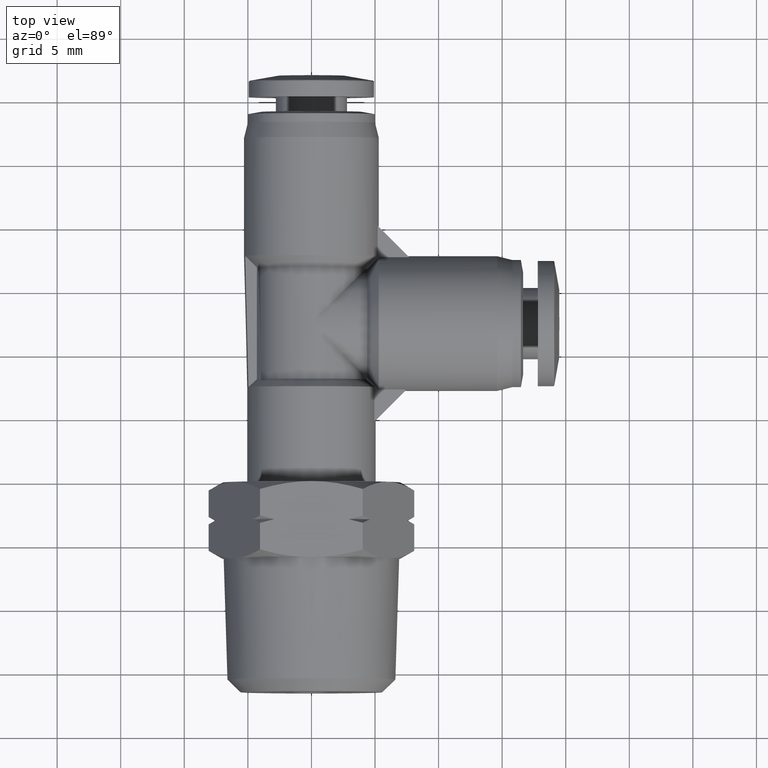
[diagram: clean part render]
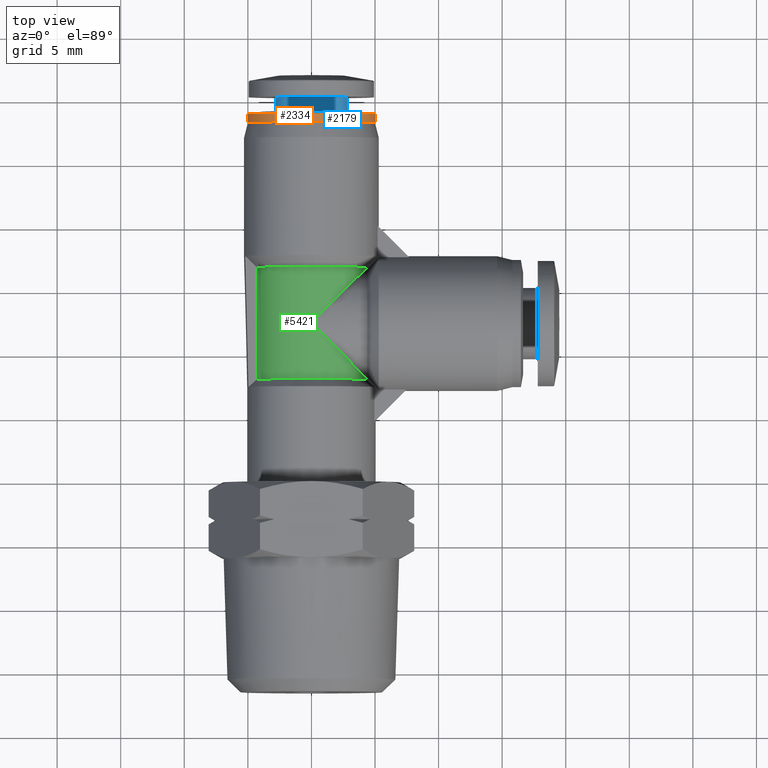
[diagram: same view with three faces highlighted in distinct colors, each labeled with its STEP entity id]
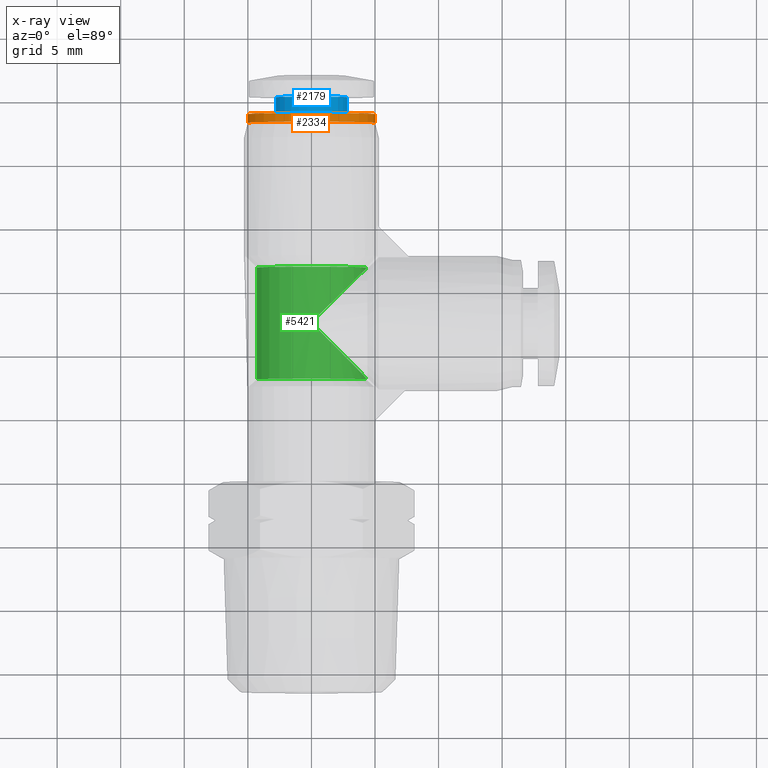
[diagram: x-ray of the same camera — body ghosted, the three highlighted faces saturated]
A machine part, top view with three faces highlighted in distinct colors.
The next image is the same camera in x-ray (body ghosted, the three faces saturated) — at least one of them is partly hidden behind the body in this view.
Their STEP definitions:

[orange] entity #2334 — the highlighted cylindrical surface (partial cylindrical patch) has radius 5 mm, axis along (0, 1, 0).
#43 = CARTESIAN_POINT ( 'NONE',  ( -9.279330078590980900E-016, 1.114173228348754200, 0.0000000000000000000 ) ) ;
#115 = EDGE_CURVE ( 'NONE', #2519, #233, #883, .T. ) ;
#198 = LINE ( 'NONE', #4030, #4807 ) ;
#233 = VERTEX_POINT ( 'NONE', #1661 ) ;
#443 = VECTOR ( 'NONE', #5229, 39.37007874015748100 ) ;
#501 = DIRECTION ( 'NONE',  ( -1.000000000000000000, 6.245004513309222900E-015, 0.0000000000000000000 ) ) ;
#735 = CIRCLE ( 'NONE', #2639, 0.1968503937073212400 ) ;
#867 = ORIENTED_EDGE ( 'NONE', *, *, #4433, .F. ) ;
#883 = CIRCLE ( 'NONE', #4400, 0.1968503937007510000 ) ;
#1095 = CARTESIAN_POINT ( 'NONE',  ( -0.1968503937073221600, 1.114173228348755500, 0.0000000000000000000 ) ) ;
#1237 = DIRECTION ( 'NONE',  ( 6.370135999999999700E-015, 1.000000000000000000, 0.0000000000000000000 ) ) ;
#1481 = LINE ( 'NONE', #1539, #443 ) ;
#1539 = CARTESIAN_POINT ( 'NONE',  ( -0.1968503937007518600, 1.127434508253742300, 0.0000000000000000000 ) ) ;
#1661 = CARTESIAN_POINT ( 'NONE',  ( -0.1968503935156613900, 1.140695788161056000, 2.410722043298506800E-017 ) ) ;
#1732 = EDGE_CURVE ( 'NONE', #2157, #2519, #198, .T. ) ;
#2157 = VERTEX_POINT ( 'NONE', #4759 ) ;
#2316 = CARTESIAN_POINT ( 'NONE',  ( 0.1968503935156601400, 1.140695788161053500, 0.0000000000000000000 ) ) ;
#2334 = ADVANCED_FACE ( 'NONE', ( #5365 ), #4856, .T. ) ;
#2356 = ORIENTED_EDGE ( 'NONE', *, *, #115, .T. ) ;
#2482 = EDGE_CURVE ( 'NONE', #2157, #4460, #735, .T. ) ;
#2519 = VERTEX_POINT ( 'NONE', #2316 ) ;
#2639 = AXIS2_PLACEMENT_3D ( 'NONE', #43, #3274, #501 ) ;
#2959 = CARTESIAN_POINT ( 'NONE',  ( -7.589809300705172500E-016, 1.140695788161054700, 0.0000000000000000000 ) ) ;
#2979 = DIRECTION ( 'NONE',  ( -1.000000000000000000, 6.245004513517661200E-015, 0.0000000000000000000 ) ) ;
#3000 = DIRECTION ( 'NONE',  ( -6.370135999999999700E-015, -1.000000000000000000, -0.0000000000000000000 ) ) ;
#3258 = ORIENTED_EDGE ( 'NONE', *, *, #2482, .F. ) ;
#3274 = DIRECTION ( 'NONE',  ( -6.370135999999999700E-015, -1.000000000000000000, 0.0000000000000000000 ) ) ;
#3738 = EDGE_LOOP ( 'NONE', ( #3258, #5089, #2356, #867 ) ) ;
#4030 = CARTESIAN_POINT ( 'NONE',  ( 0.1968503937007501600, 1.127434508253739800, 2.410722045565210200E-017 ) ) ;
#4400 = AXIS2_PLACEMENT_3D ( 'NONE', #2959, #3000, #2979 ) ;
#4433 = EDGE_CURVE ( 'NONE', #4460, #233, #1481, .T. ) ;
#4460 = VERTEX_POINT ( 'NONE', #1095 ) ;
#4759 = CARTESIAN_POINT ( 'NONE',  ( 0.1968503937073203300, 1.114173228348753100, 2.410722045645671500E-017 ) ) ;
#4807 = VECTOR ( 'NONE', #5350, 39.37007874015748100 ) ;
#4856 = CYLINDRICAL_SURFACE ( 'NONE', #4914, 0.1968503937007510000 ) ;
#4914 = AXIS2_PLACEMENT_3D ( 'NONE', #4957, #1237, #4976 ) ;
#4957 = CARTESIAN_POINT ( 'NONE',  ( -8.434570866141732300E-016, 1.127434508253740900, 0.0000000000000000000 ) ) ;
#4976 = DIRECTION ( 'NONE',  ( -1.000000000000000000, 6.245004513517661200E-015, 0.0000000000000000000 ) ) ;
#5089 = ORIENTED_EDGE ( 'NONE', *, *, #1732, .T. ) ;
#5229 = DIRECTION ( 'NONE',  ( 6.370135999999999700E-015, 1.000000000000000000, 0.0000000000000000000 ) ) ;
#5350 = DIRECTION ( 'NONE',  ( 6.370135999999999700E-015, 1.000000000000000000, 0.0000000000000000000 ) ) ;
#5365 = FACE_OUTER_BOUND ( 'NONE', #3738, .T. ) ;

[blue] entity #2179 — the highlighted cylindrical surface (edge-blend (fillet) strip) has radius 2.8 mm, axis along (0, 1, 0).
#218 = EDGE_CURVE ( 'NONE', #4362, #4116, #680, .T. ) ;
#563 = AXIS2_PLACEMENT_3D ( 'NONE', #1843, #1883, #1859 ) ;
#566 = ORIENTED_EDGE ( 'NONE', *, *, #5210, .T. ) ;
#680 = CIRCLE ( 'NONE', #563, 0.1102362204724030400 ) ;
#1103 = EDGE_CURVE ( 'NONE', #4362, #4337, #3220, .T. ) ;
#1366 = DIRECTION ( 'NONE',  ( 6.370135999999999700E-015, 1.000000000000000000, 0.0000000000000000000 ) ) ;
#1724 = CYLINDRICAL_SURFACE ( 'NONE', #3105, 0.1102362204724030400 ) ;
#1843 = CARTESIAN_POINT ( 'NONE',  ( -7.147593779527558900E-016, 1.147637795275561200, 0.0000000000000000000 ) ) ;
#1859 = DIRECTION ( 'NONE',  ( -1.000000000000000000, 6.195440985633584100E-015, 0.0000000000000000000 ) ) ;
#1883 = DIRECTION ( 'NONE',  ( 6.370135999999999700E-015, 1.000000000000000000, 0.0000000000000000000 ) ) ;
#1998 = ORIENTED_EDGE ( 'NONE', *, *, #4199, .F. ) ;
#2082 = LINE ( 'NONE', #4484, #5686 ) ;
#2144 = DIRECTION ( 'NONE',  ( 6.370135999999999700E-015, 1.000000000000000000, 0.0000000000000000000 ) ) ;
#2179 = ADVANCED_FACE ( 'NONE', ( #2481 ), #1724, .T. ) ;
#2330 = VECTOR ( 'NONE', #1366, 39.37007874015748100 ) ;
#2335 = CARTESIAN_POINT ( 'NONE',  ( -4.263477086614177600E-016, 1.192913385826742400, 0.0000000000000000000 ) ) ;
#2457 = CARTESIAN_POINT ( 'NONE',  ( -0.1102362204724037600, 1.147637795275562100, 0.0000000000000000000 ) ) ;
#2481 = FACE_OUTER_BOUND ( 'NONE', #2958, .T. ) ;
#2810 = VERTEX_POINT ( 'NONE', #4521 ) ;
#2818 = DIRECTION ( 'NONE',  ( -1.000000000000000000, 6.195440985633584100E-015, 0.0000000000000000000 ) ) ;
#2946 = DIRECTION ( 'NONE',  ( 6.370135999999999700E-015, 1.000000000000000000, 0.0000000000000000000 ) ) ;
#2958 = EDGE_LOOP ( 'NONE', ( #3886, #566, #1998, #4508 ) ) ;
#3105 = AXIS2_PLACEMENT_3D ( 'NONE', #4325, #2946, #3443 ) ;
#3220 = LINE ( 'NONE', #3473, #2330 ) ;
#3443 = DIRECTION ( 'NONE',  ( -1.000000000000000000, 6.195440985633584100E-015, 0.0000000000000000000 ) ) ;
#3473 = CARTESIAN_POINT ( 'NONE',  ( -0.1102362204724036100, 1.170275590551152600, 0.0000000000000000000 ) ) ;
#3886 = ORIENTED_EDGE ( 'NONE', *, *, #218, .T. ) ;
#4116 = VERTEX_POINT ( 'NONE', #4951 ) ;
#4199 = EDGE_CURVE ( 'NONE', #4337, #2810, #5230, .T. ) ;
#4325 = CARTESIAN_POINT ( 'NONE',  ( -5.705535433070866700E-016, 1.170275590551151900, 0.0000000000000000000 ) ) ;
#4337 = VERTEX_POINT ( 'NONE', #5182 ) ;
#4362 = VERTEX_POINT ( 'NONE', #2457 ) ;
#4484 = CARTESIAN_POINT ( 'NONE',  ( 0.1102362204724024700, 1.170275590551151000, 1.350004345516303100E-017 ) ) ;
#4508 = ORIENTED_EDGE ( 'NONE', *, *, #1103, .F. ) ;
#4521 = CARTESIAN_POINT ( 'NONE',  ( 0.1102362204724026300, 1.192913385826741600, 1.350004345516304800E-017 ) ) ;
#4951 = CARTESIAN_POINT ( 'NONE',  ( 0.1102362204724023200, 1.147637795275560500, 1.350004345516303100E-017 ) ) ;
#5182 = CARTESIAN_POINT ( 'NONE',  ( -0.1102362204724034700, 1.192913385826743100, 0.0000000000000000000 ) ) ;
#5210 = EDGE_CURVE ( 'NONE', #4116, #2810, #2082, .T. ) ;
#5230 = CIRCLE ( 'NONE', #5687, 0.1102362204724030400 ) ;
#5500 = DIRECTION ( 'NONE',  ( 6.370135999999999700E-015, 1.000000000000000000, 0.0000000000000000000 ) ) ;
#5686 = VECTOR ( 'NONE', #2144, 39.37007874015748100 ) ;
#5687 = AXIS2_PLACEMENT_3D ( 'NONE', #2335, #5500, #2818 ) ;

[green] entity #5421 — the highlighted cylindrical surface (partial cylindrical patch) has radius 4.4 mm, axis along (0, 1, 0).
#77 = CARTESIAN_POINT ( 'NONE',  ( -4.890456692913386400E-015, 0.4921259842518958000, 0.0000000000000000000 ) ) ;
#94 = VECTOR ( 'NONE', #1755, 39.37007874015748100 ) ;
#241 = VERTEX_POINT ( 'NONE', #1635 ) ;
#330 = AXIS2_PLACEMENT_3D ( 'NONE', #3456, #669, #2572 ) ;
#529 = EDGE_CURVE ( 'NONE', #241, #2673, #4365, .T. ) ;
#579 = FACE_OUTER_BOUND ( 'NONE', #5151, .T. ) ;
#632 = DIRECTION ( 'NONE',  ( -1.000000000000000000, 6.308085367191217700E-015, 0.0000000000000000000 ) ) ;
#642 = EDGE_CURVE ( 'NONE', #4712, #2970, #882, .T. ) ;
#669 = DIRECTION ( 'NONE',  ( -6.370135999999999700E-015, -1.000000000000000000, 0.0000000000000000000 ) ) ;
#731 = CIRCLE ( 'NONE', #330, 0.1732283464669133500 ) ;
#781 = VERTEX_POINT ( 'NONE', #2368 ) ;
#832 = CARTESIAN_POINT ( 'NONE',  ( 0.08390196899499219300, 0.4082240152570027500, 0.1732283464566158600 ) ) ;
#875 = ORIENTED_EDGE ( 'NONE', *, *, #2042, .T. ) ;
#882 =( BOUNDED_CURVE ( )  B_SPLINE_CURVE ( 3, ( #3566, #3643, #3784, #3544 ),
 .UNSPECIFIED., .F., .T. ) 
 B_SPLINE_CURVE_WITH_KNOTS ( ( 4, 4 ),
 ( 4.712388980384689700, 6.053909103965502000 ),
 .UNSPECIFIED. ) 
 CURVE ( )  GEOMETRIC_REPRESENTATION_ITEM ( )  RATIONAL_B_SPLINE_CURVE ( ( 1.000000000000000000, 0.8555663012004484100, 0.8555663012004484100, 1.000000000000000000 ) ) 
 REPRESENTATION_ITEM ( '' )  );
#924 = CARTESIAN_POINT ( 'NONE',  ( 0.1686951597345603100, 0.3188976378117316900, 0.03937007874015748000 ) ) ;
#1141 = CARTESIAN_POINT ( 'NONE',  ( 0.1686951597292729300, 0.2734316764540401500, 0.03937007874015748000 ) ) ;
#1286 = CYLINDRICAL_SURFACE ( 'NONE', #4771, 0.1732283464566152500 ) ;
#1441 = DIRECTION ( 'NONE',  ( -6.370135999999999700E-015, -1.000000000000000000, -0.0000000000000000000 ) ) ;
#1482 = ORIENTED_EDGE ( 'NONE', *, *, #5243, .T. ) ;
#1573 =( BOUNDED_CURVE ( )  B_SPLINE_CURVE ( 3, ( #5368, #2665, #832, #4070 ),
 .UNSPECIFIED., .F., .F. ) 
 B_SPLINE_CURVE_WITH_KNOTS ( ( 4, 4 ),
 ( 0.2292762032140843700, 1.570796326794896600 ),
 .UNSPECIFIED. ) 
 CURVE ( )  GEOMETRIC_REPRESENTATION_ITEM ( )  RATIONAL_B_SPLINE_CURVE ( ( 1.000000000000000000, 0.8555663012004484100, 0.8555663012004484100, 1.000000000000000000 ) ) 
 REPRESENTATION_ITEM ( '' )  );
#1635 = CARTESIAN_POINT ( 'NONE',  ( -0.1686951597342755100, 0.3188976378120006400, 0.03937007874015752800 ) ) ;
#1755 = DIRECTION ( 'NONE',  ( 6.370135999999999700E-015, 1.000000000000000000, 0.0000000000000000000 ) ) ;
#1853 = CARTESIAN_POINT ( 'NONE',  ( -4.886817490793777500E-015, 0.4921259842520063200, 0.1732283464566158600 ) ) ;
#2042 = EDGE_CURVE ( 'NONE', #781, #2673, #5454, .T. ) ;
#2368 = CARTESIAN_POINT ( 'NONE',  ( 0.1686951597372141100, 0.6653543307004212700, 0.03937007874015750100 ) ) ;
#2572 = DIRECTION ( 'NONE',  ( -1.000000000000000000, 6.308085366816213800E-015, 0.0000000000000000000 ) ) ;
#2634 = ORIENTED_EDGE ( 'NONE', *, *, #5575, .T. ) ;
#2665 = CARTESIAN_POINT ( 'NONE',  ( 0.1496265304122202100, 0.3424994538397698700, 0.1210764296390096900 ) ) ;
#2673 = VERTEX_POINT ( 'NONE', #3917 ) ;
#2911 = VERTEX_POINT ( 'NONE', #924 ) ;
#2970 = VERTEX_POINT ( 'NONE', #4651 ) ;
#3171 = CARTESIAN_POINT ( 'NONE',  ( 0.1686951597292740100, 0.4921259842518947400, 0.03937007874015750800 ) ) ;
#3435 = ORIENTED_EDGE ( 'NONE', *, *, #5485, .F. ) ;
#3456 = CARTESIAN_POINT ( 'NONE',  ( -5.993947212523450900E-015, 0.3188976378069797700, 0.0000000000000000000 ) ) ;
#3530 = VERTEX_POINT ( 'NONE', #5286 ) ;
#3544 = CARTESIAN_POINT ( 'NONE',  ( 0.1686951597292756800, 0.6608211439812741200, 0.03937007874015750100 ) ) ;
#3566 = CARTESIAN_POINT ( 'NONE',  ( -4.886817490793777500E-015, 0.4921259842520063200, 0.1732283464566158600 ) ) ;
#3643 = CARTESIAN_POINT ( 'NONE',  ( 0.08390196899499327600, 0.5760279532469979600, 0.1732283464566158600 ) ) ;
#3784 = CARTESIAN_POINT ( 'NONE',  ( 0.1496265304122221500, 0.6417525146642217800, 0.1210764296390096900 ) ) ;
#3853 = DIRECTION ( 'NONE',  ( 6.370135999999999700E-015, 1.000000000000000000, 0.0000000000000000000 ) ) ;
#3917 = CARTESIAN_POINT ( 'NONE',  ( -0.1686951597372222100, 0.6653543307004234900, 0.03937007874015752800 ) ) ;
#3933 = DIRECTION ( 'NONE',  ( 0.0000000000000000000, -1.000000000000000000, -0.0000000000000000000 ) ) ;
#3944 = ORIENTED_EDGE ( 'NONE', *, *, #642, .T. ) ;
#3982 = ORIENTED_EDGE ( 'NONE', *, *, #4507, .F. ) ;
#4070 = CARTESIAN_POINT ( 'NONE',  ( -4.886817490793777500E-015, 0.4921259842520063200, 0.1732283464566158600 ) ) ;
#4155 = AXIS2_PLACEMENT_3D ( 'NONE', #4239, #1441, #4706 ) ;
#4239 = CARTESIAN_POINT ( 'NONE',  ( -3.786968566929225200E-015, 0.6653543307085745300, 0.0000000000000000000 ) ) ;
#4365 = LINE ( 'NONE', #4973, #5386 ) ;
#4507 = EDGE_CURVE ( 'NONE', #3530, #2911, #4589, .T. ) ;
#4589 = LINE ( 'NONE', #1141, #5712 ) ;
#4651 = CARTESIAN_POINT ( 'NONE',  ( 0.1686951597292756800, 0.6608211439812741200, 0.03937007874015750100 ) ) ;
#4706 = DIRECTION ( 'NONE',  ( -1.000000000000000000, 6.308085367191217700E-015, 0.0000000000000000000 ) ) ;
#4712 = VERTEX_POINT ( 'NONE', #1853 ) ;
#4771 = AXIS2_PLACEMENT_3D ( 'NONE', #77, #3853, #632 ) ;
#4973 = CARTESIAN_POINT ( 'NONE',  ( -0.1686951597292837600, 0.2952755905511810800, 0.03937007874015752800 ) ) ;
#4991 = LINE ( 'NONE', #3171, #94 ) ;
#5019 = DIRECTION ( 'NONE',  ( -0.0000000000000000000, 1.000000000000000000, 0.0000000000000000000 ) ) ;
#5151 = EDGE_LOOP ( 'NONE', ( #2634, #875, #5717, #3435, #3982, #1482, #3944 ) ) ;
#5243 = EDGE_CURVE ( 'NONE', #3530, #4712, #1573, .T. ) ;
#5286 = CARTESIAN_POINT ( 'NONE',  ( 0.1686951597292735400, 0.3234308245227150400, 0.03937007874015748000 ) ) ;
#5368 = CARTESIAN_POINT ( 'NONE',  ( 0.1686951597292735400, 0.3234308245227150400, 0.03937007874015748000 ) ) ;
#5386 = VECTOR ( 'NONE', #5019, 39.37007874015748100 ) ;
#5421 = ADVANCED_FACE ( 'NONE', ( #579 ), #1286, .T. ) ;
#5454 = CIRCLE ( 'NONE', #4155, 0.1732283464566152500 ) ;
#5485 = EDGE_CURVE ( 'NONE', #2911, #241, #731, .T. ) ;
#5575 = EDGE_CURVE ( 'NONE', #2970, #781, #4991, .T. ) ;
#5712 = VECTOR ( 'NONE', #3933, 39.37007874015748100 ) ;
#5717 = ORIENTED_EDGE ( 'NONE', *, *, #529, .F. ) ;